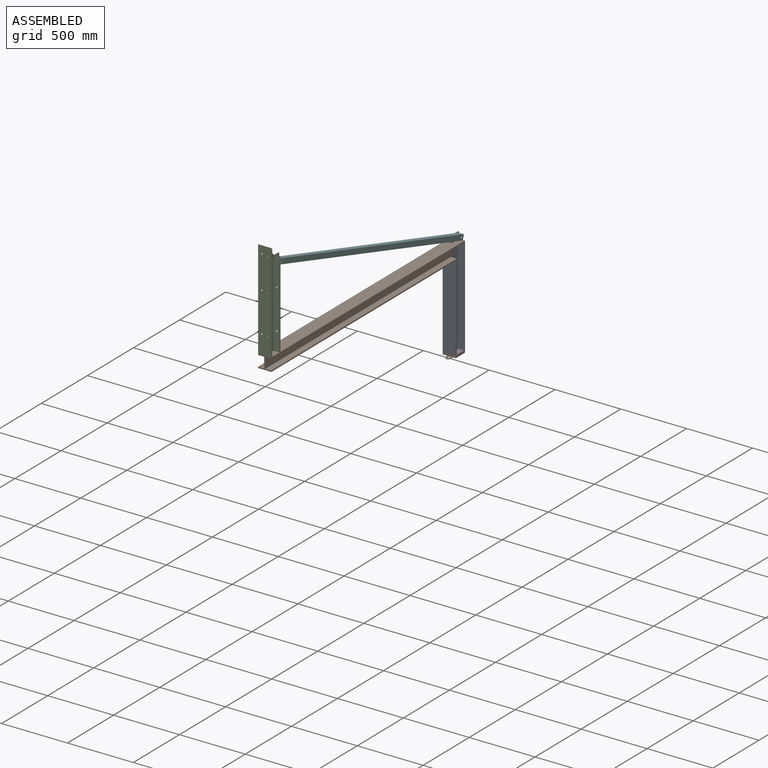
[diagram: assembled view]
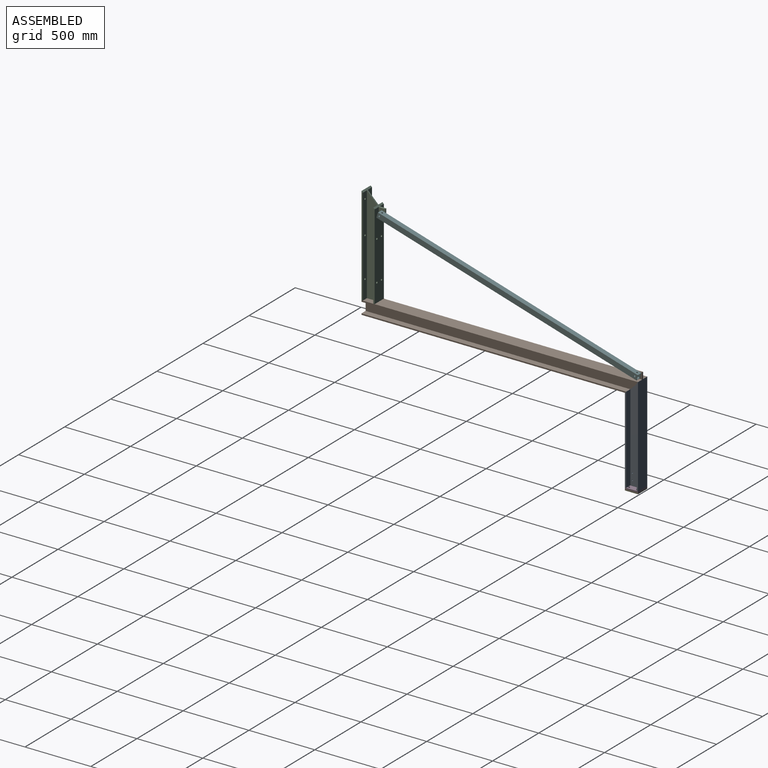
[diagram: assembled view, second angle]
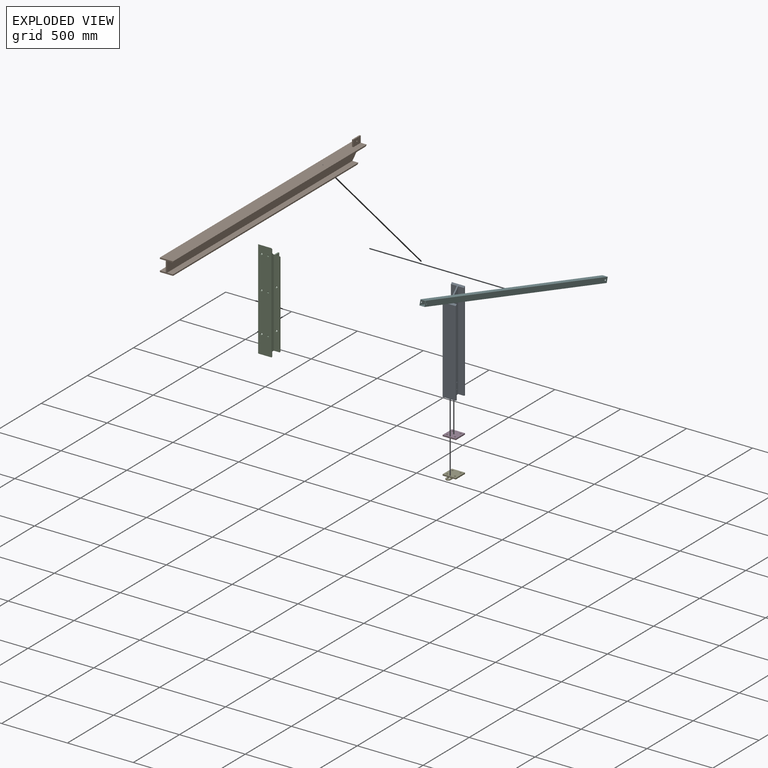
[diagram: exploded view]
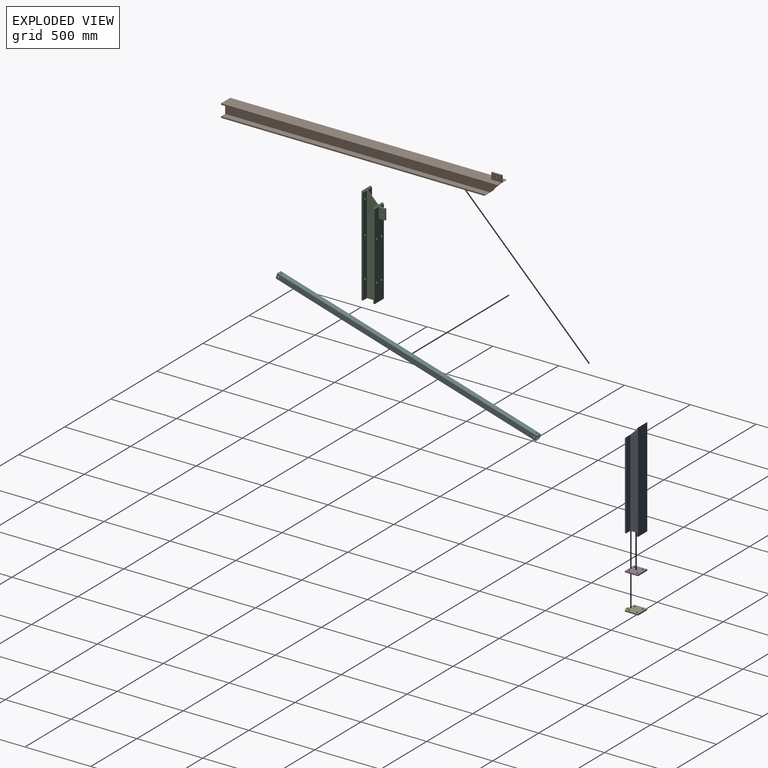
[diagram: exploded view, second angle]
ASSEMBLY  parts=6 mates=5
PART A: 18 faces, bbox 100x750x100 mm
  f0: plane 750x100mm, normal (0,0,1), area 75000mm2, adj f1,f11,f12,f13
  f1: plane 750x10mm, normal (-1,0,0), area 7450mm2, adj f0,f2,f12,f13
  f2: plane 740x45mm, normal (0,0,-1), area 33300mm2, adj f1,f3,f12,f13
  f3: plane 740x80mm, normal (-1,0,0), area 55745.5mm2, adj f2,f4,f12,f13,f14,f15,f16,f17
  f4: plane 660x45mm, normal (0,0,1), area 29700mm2, adj f3,f5,f12,f13
  f5: plane 660x10mm, normal (-1,0,0), area 6550mm2, adj f4,f6,f12,f13
  f6: plane 650x100mm, normal (0,0,-1), area 65000mm2, adj f5,f7,f12,f13
  f7: plane 660x10mm, normal (1,0,0), area 6550mm2, adj f6,f8,f12,f13
  f8: plane 660x45mm, normal (0,0,1), area 29700mm2, adj f7,f9,f12,f13
  f9: plane 740x80mm, normal (1,0,0), area 55745.5mm2, adj f8,f10,f12,f13,f14,f15,f16,f17
  f10: plane 740x45mm, normal (0,0,-1), area 33300mm2, adj f9,f11,f12,f13
  f11: plane 750x10mm, normal (1,0,0), area 7450mm2, adj f0,f10,f12,f13
  f12: plane 100x100mm, normal (0,-1,0), area 2800mm2, adj f0,f1,f2,f3,f4,f5,f6,f7
  f13: plane 100x100mm, normal (0,0.71,-0.71), area 3959.8mm2, adj f0,f1,f2,f3,f4,f5,f6,f7
  f14: cylinder r=4.5mm len=10mm, axis (1,0,0), area 282.7mm2, adj f3,f9
  f15: cylinder r=4.5mm len=10mm, axis (1,0,0), area 282.7mm2, adj f3,f9
  f16: cylinder r=4.5mm len=10mm, axis (1,0,0), area 282.7mm2, adj f3,f9
  f17: cylinder r=4.5mm len=10mm, axis (1,0,0), area 282.7mm2, adj f3,f9
PART B: 20 faces, bbox 100x2100x150 mm
  f0: plane 2100x100mm, normal (0,0,1), area 209200mm2, adj f1,f11,f12,f13,f15,f16,f17
  f1: plane 2100x10mm, normal (-1,0,0), area 20950mm2, adj f0,f2,f12,f13
  f2: plane 2090x45mm, normal (0,0,-1), area 94050mm2, adj f1,f3,f12,f13
  f3: plane 2090x80mm, normal (-1,0,0), area 164000mm2, adj f2,f4,f12,f13
  f4: plane 2010x45mm, normal (0,0,1), area 90450mm2, adj f3,f5,f12,f13
  f5: plane 2010x10mm, normal (-1,0,0), area 20050mm2, adj f4,f6,f12,f13
  f6: plane 2000x100mm, normal (0,0,-1), area 200000mm2, adj f5,f7,f12,f13
  f7: plane 2010x10mm, normal (1,0,0), area 20050mm2, adj f6,f8,f12,f13
  f8: plane 2010x45mm, normal (0,0,1), area 90450mm2, adj f7,f9,f12,f13
  f9: plane 2090x80mm, normal (1,0,0), area 164000mm2, adj f8,f10,f12,f13
  f10: plane 2090x45mm, normal (0,0,-1), area 94050mm2, adj f9,f11,f12,f13
  f11: plane 2100x10mm, normal (1,0,0), area 20950mm2, adj f0,f10,f12,f13
  f12: plane 100x100mm, normal (0,-1,0), area 2800mm2, adj f0,f1,f2,f3,f4,f5,f6,f7
  f13: plane 100x100mm, normal (0,0.71,-0.71), area 3959.8mm2, adj f0,f1,f2,f3,f4,f5,f6,f7
  f14: plane 50x10mm, normal (0,1,0), area 500mm2, adj f13,f15,f17,f18
  f15: plane 80x50mm, normal (-1,0,0), area 3886.9mm2, adj f0,f14,f16,f18,f19
  f16: plane 50x10mm, normal (0,-1,0), area 500mm2, adj f0,f15,f17,f18
  f17: plane 80x50mm, normal (1,0,0), area 3886.9mm2, adj f0,f14,f16,f18,f19
  f18: plane 80x10mm, normal (0,0,1), area 800mm2, adj f14,f15,f16,f17
  f19: cylinder r=6mm len=12mm, axis (1,0,0), area 377mm2, adj f15,f17
PART C: 30 faces, bbox 100x750x150 mm
  f0: plane 750x100mm, normal (0,0,1), area 74076.4mm2, adj f1,f11,f12,f13,f14,f15,f16,f21
  f1: plane 750x10mm, normal (-1,0,0), area 7450mm2, adj f0,f2,f12,f13
  f2: plane 740x45mm, normal (0,0,-1), area 32838.2mm2, adj f1,f3,f12,f13,f21,f22,f23
  f3: plane 740x80mm, normal (-1,0,0), area 56000mm2, adj f2,f4,f12,f13
  f4: plane 660x45mm, normal (0,0,1), area 29392.1mm2, adj f3,f5,f12,f13,f19,f20
  f5: plane 660x10mm, normal (-1,0,0), area 6550mm2, adj f4,f6,f12,f13
  f6: plane 650x100mm, normal (0,0,-1), area 63584.2mm2, adj f5,f7,f12,f13,f17,f18,f19,f20
  f7: plane 660x10mm, normal (1,0,0), area 6550mm2, adj f6,f8,f12,f13
  f8: plane 660x45mm, normal (0,0,1), area 29392.1mm2, adj f7,f9,f12,f13,f17,f18
  f9: plane 740x80mm, normal (1,0,0), area 56000mm2, adj f8,f10,f12,f13
  f10: plane 740x45mm, normal (0,0,-1), area 32838.2mm2, adj f9,f11,f12,f13,f14,f15,f16
  f11: plane 750x10mm, normal (1,0,0), area 7450mm2, adj f0,f10,f12,f13
  f12: plane 100x100mm, normal (0,-1,0), area 2800mm2, adj f0,f1,f2,f3,f4,f5,f6,f7
  f13: plane 100x100mm, normal (0,0.71,-0.71), area 3959.8mm2, adj f0,f1,f2,f3,f4,f5,f6,f7
  f14: cylinder r=7mm len=14mm, axis (0,0,1), area 439.8mm2, adj f0,f10
  f15: cylinder r=7mm len=14mm, axis (0,0,1), area 439.8mm2, adj f0,f10
  f16: cylinder r=7mm len=14mm, axis (0,0,1), area 439.8mm2, adj f0,f10
  f17: cylinder r=7mm len=14mm, axis (0,0,1), area 439.8mm2, adj f6,f8
  f18: cylinder r=7mm len=14mm, axis (0,0,1), area 439.8mm2, adj f6,f8
  f19: cylinder r=7mm len=14mm, axis (0,0,1), area 439.8mm2, adj f4,f6
  f20: cylinder r=7mm len=14mm, axis (0,0,1), area 439.8mm2, adj f4,f6
  f21: cylinder r=7mm len=14mm, axis (0,0,1), area 439.8mm2, adj f0,f2
  f22: cylinder r=7mm len=14mm, axis (0,0,1), area 439.8mm2, adj f0,f2
  f23: cylinder r=7mm len=14mm, axis (0,0,1), area 439.8mm2, adj f0,f2
  f24: plane 80x50mm, normal (-1,0,0), area 3886.9mm2, adj f6,f25,f27,f28,f29
  f25: plane 50x10mm, normal (0,1,0), area 500mm2, adj f13,f24,f26,f28
  f26: plane 80x50mm, normal (1,0,0), area 3886.9mm2, adj f6,f25,f27,f28,f29
  f27: plane 50x10mm, normal (0,-1,0), area 500mm2, adj f6,f24,f26,f28
  f28: plane 80x10mm, normal (0,0,-1), area 800mm2, adj f24,f25,f26,f27
  f29: cylinder r=6mm len=12mm, axis (1,0,0), area 377mm2, adj f24,f26
PART D: 10 faces, bbox 100x100x10 mm
  f0: plane 100x10mm, normal (0,1,0), area 1000mm2, adj f1,f7,f8,f9
  f1: plane 100x10mm, normal (-1,0,0), area 1000mm2, adj f0,f2,f8,f9
  f2: plane 100x10mm, normal (0,-1,0), area 1000mm2, adj f1,f7,f8,f9
  f3: cylinder r=6.39mm len=12.78mm, axis (0,0,-1), area 401.4mm2, adj f8,f9
  f4: cylinder r=6.39mm len=12.78mm, axis (0,0,-1), area 401.4mm2, adj f8,f9
  f5: cylinder r=6.39mm len=12.78mm, axis (0,0,-1), area 401.4mm2, adj f8,f9
  f6: cylinder r=6.39mm len=12.78mm, axis (0,0,-1), area 401.4mm2, adj f8,f9
  f7: plane 100x10mm, normal (1,0,0), area 1000mm2, adj f0,f2,f8,f9
  f8: plane 100x100mm, normal (0,0,1), area 9487.1mm2, adj f0,f1,f2,f3,f4,f5,f6,f7
  f9: plane 100x100mm, normal (0,0,-1), area 9487.1mm2, adj f0,f1,f2,f3,f4,f5,f6,f7
PART E: 31 faces, bbox 100x129.5x20 mm
  f0: plane 100x100mm, normal (0,0,1), area 8788.3mm2, adj f1,f2,f3,f4,f5,f6,f7,f8
  f1: plane 100x10mm, normal (0,1,0), area 1000mm2, adj f0,f2,f8,f9
  f2: plane 100x10mm, normal (-1,0,0), area 1000mm2, adj f0,f1,f3,f9
  f3: plane 100x13mm, normal (0,-1,0), area 1003.9mm2, adj f0,f2,f8,f9,f10,f12,f14,f20
  f4: cylinder r=6.39mm len=12.78mm, axis (0,0,-1), area 401.4mm2, adj f0,f9
  f5: cylinder r=6.39mm len=12.78mm, axis (0,0,-1), area 401.4mm2, adj f0,f9
  f6: cylinder r=6.39mm len=12.78mm, axis (0,0,-1), area 401.4mm2, adj f0,f9
  f7: cylinder r=6.39mm len=12.78mm, axis (0,0,-1), area 401.4mm2, adj f0,f9
  f8: plane 100x10mm, normal (1,0,0), area 1000mm2, adj f0,f1,f3,f9
  f9: plane 100x100mm, normal (0,0,-1), area 9487.1mm2, adj f1,f2,f3,f4,f5,f6,f7,f8
  f10: plane 30x25.06mm, normal (0,0,-1), area 393.7mm2, adj f3,f16,f17,f18,f20,f21,f22
  f11: plane 10x7mm, normal (0,1,0), area 70mm2, adj f0,f12,f18,f26
  f12: plane 45x7mm, normal (-1,0,0), area 284.8mm2, adj f0,f3,f11,f13,f20,f28
  f13: cylinder r=18mm len=36mm, axis (0,0,-1), area 226.2mm2, adj f12,f14,f21,f30
  f14: plane 45x7mm, normal (1,0,0), area 284.8mm2, adj f0,f3,f13,f15,f22,f29
  f15: plane 10x7mm, normal (0,1,0), area 70mm2, adj f0,f14,f16,f27
  f16: plane 45x7mm, normal (-1,0,0), area 315mm2, adj f0,f10,f15,f17,f25
  f17: cylinder r=8mm len=16mm, axis (0,0,-1), area 175.9mm2, adj f10,f16,f18,f23
  f18: plane 45x7mm, normal (1,0,0), area 315mm2, adj f0,f10,f11,f17,f24
  f19: plane 57x30mm, normal (0,0,1), area 499.4mm2, adj f23,f24,f25,f26,f27,f28,f29,f30
  f20: cylinder r=3mm len=10.06mm, axis (0,-1,0), area 47.4mm2, adj f3,f10,f12,f21
  f21: torus R=15mm, axis (0,0,1), area 250.3mm2, adj f10,f13,f20,f22
  f22: cylinder r=3mm len=10.06mm, axis (0,1,0), area 47.4mm2, adj f3,f10,f14,f21
  f23: torus R=11mm, axis (0,0,1), area 134.6mm2, adj f17,f19,f24,f25
  f24: cylinder r=3mm len=45mm, axis (0,-1,0), area 206.9mm2, adj f18,f19,f23,f26
  f25: cylinder r=3mm len=45mm, axis (0,1,0), area 206.9mm2, adj f16,f19,f23,f27
  f26: cylinder r=3mm len=10mm, axis (1,0,0), area 36.8mm2, adj f11,f19,f24,f28
  f27: cylinder r=3mm len=10mm, axis (1,0,0), area 36.8mm2, adj f15,f19,f25,f29
  f28: cylinder r=3mm len=45mm, axis (0,1,0), area 206.9mm2, adj f12,f19,f26,f30
  f29: cylinder r=3mm len=45mm, axis (0,-1,0), area 206.9mm2, adj f14,f19,f27,f30
  f30: torus R=15mm, axis (0,0,1), area 250.3mm2, adj f13,f19,f28,f29
PART F: 18 faces, bbox 40x40x2060 mm
  f0: plane 2060x40mm, normal (0,1,0), area 82173.8mm2, adj f1,f7,f8,f9,f15,f17
  f1: plane 2060x40mm, normal (-1,0,0), area 82173.8mm2, adj f0,f2,f8,f9,f11,f13
  f2: plane 2060x40mm, normal (0,-1,0), area 82173.8mm2, adj f1,f7,f8,f9,f14,f16
  f3: plane 2060x34mm, normal (1,0,0), area 69813.8mm2, adj f4,f6,f8,f9,f11,f13
  f4: plane 2060x34mm, normal (0,-1,0), area 69813.8mm2, adj f3,f5,f8,f9,f15,f17
  f5: plane 2060x34mm, normal (-1,0,0), area 69813.8mm2, adj f4,f6,f8,f9,f10,f12
  f6: plane 2060x34mm, normal (0,1,0), area 69813.8mm2, adj f3,f5,f8,f9,f14,f16
  f7: plane 2060x40mm, normal (1,0,0), area 82173.8mm2, adj f0,f2,f8,f9,f10,f12
  f8: plane 40x40mm, normal (0,0,1), area 444mm2, adj f0,f1,f2,f3,f4,f5,f6,f7
  f9: plane 40x40mm, normal (0,0,-1), area 444mm2, adj f0,f1,f2,f3,f4,f5,f6,f7
  f10: cylinder r=6mm len=12mm, axis (-1,0,0), area 113.1mm2, adj f5,f7
  f11: cylinder r=6mm len=12mm, axis (-1,0,0), area 113.1mm2, adj f1,f3
  f12: cylinder r=6mm len=12mm, axis (1,0,0), area 113.1mm2, adj f5,f7
  f13: cylinder r=6mm len=12mm, axis (1,0,0), area 113.1mm2, adj f1,f3
  f14: cylinder r=6mm len=12mm, axis (0,1,0), area 113.1mm2, adj f2,f6
  f15: cylinder r=6mm len=12mm, axis (0,1,0), area 113.1mm2, adj f0,f4
  f16: cylinder r=6mm len=12mm, axis (0,1,0), area 113.1mm2, adj f2,f6
  f17: cylinder r=6mm len=12mm, axis (0,1,0), area 113.1mm2, adj f0,f4
PLACE A rot(axis=(0,-0.71,-0.71),180deg) t=(-234.69,524.87,-175.9)mm
PLACE B rot(axis=(-0.12,0.99,-0.02),0deg) t=(-234.69,574.87,-225.9)mm fixed
PLACE C rot(axis=(1,0,0),90deg) t=(-234.69,-1475.13,574.1)mm
PLACE D rot(axis=(0,-1,0),180deg) t=(-234.69,524.87,-925.9)mm
PLACE E rot(axis=(0,-1,0),180deg) t=(-234.69,524.87,-935.9)mm
PLACE F rot(axis=(0,-0.8,-0.6),180deg) t=(-209.69,-1409.57,438.06)mm
MATE fastened E.f9 <-> D.f8  axis (0,0,1) through (-234.69,524.87,-935.9)mm
MATE fastened D.f9 <-> A.f12  axis (0,0,1) through (-184.69,474.87,-925.9)mm
MATE fastened C.f12 <-> B.f0  axis (0,0,-1) through (-184.69,-1525.13,-175.9)mm
MATE revolute F.f10 <-> C.f29  axis (-1,0,0) through (-229.69,-1395.12,433.75)mm
MATE fastened A.f13 <-> B.f13  axis (0,-0.71,0.71) through (-284.69,474.87,-275.9)mm
